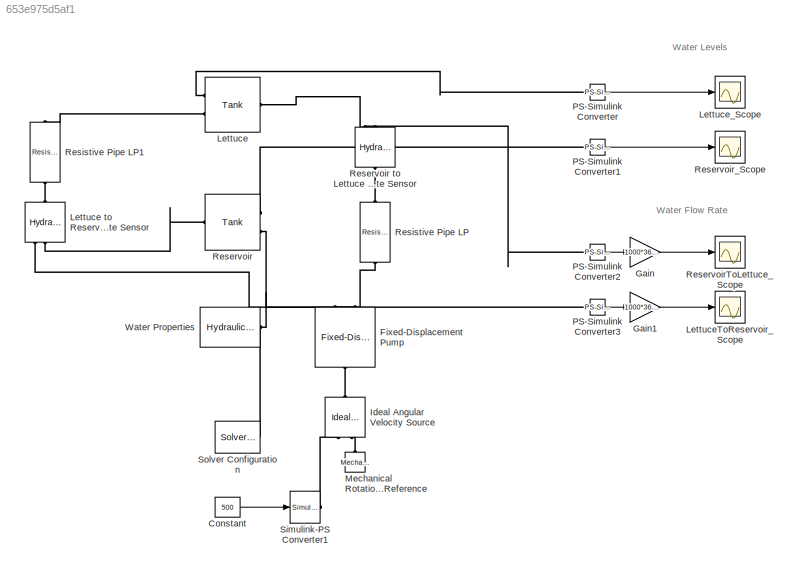
MODEL slx_653e975d5af1
KIND model
CONFIG AbsTol = auto
CONFIG EnableMultiTasking = off
CONFIG FixedStep = auto
CONFIG MaxStep = auto
CONFIG MinStep = auto
CONFIG RelTol = 1e-3
CONFIG SampleTimeConstraint = Unconstrained
CONFIG Solver = VariableStepAuto
CONFIG SolverName = VariableStepAuto
CONFIG StartTime = 0.0
CONFIG StopTime = 60
BLOCK [Reference]  Water Properties  REF=sh_lib/Hydraulic Utilities/Hydraulic Fluid
  Ports = [0, 0, 0, 0, 0, 0, 1]
  SourceBlock = sh_lib/Hydraulic Utilities/Hydraulic Fluid
  SourceProductBaseCode = SH
  SourceProductName = Simscape Fluids
  SourceType = Hydraulic Fluid
BLOCK [Constant] Constant
  Value = 500
BLOCK [Reference] Fixed-Displacement Pump  REF=sh_lib/Pumps and Motors/Fixed-Displacement
Pump
  Ports = [0, 0, 0, 0, 0, 1, 2]
  SourceBlock = sh_lib/Pumps and Motors/Fixed-Displacement\nPump
  SourceProductBaseCode = SH
  SourceProductName = Simscape Fluids
  SourceType = Fixed-Displacement\nPump
BLOCK [Gain] Gain
  Gain = 1000*3600
  OutDataTypeStr = Inherit: Inherit via internal rule
  ParamDataTypeStr = Inherit: Inherit via internal rule
  SaturateOnIntegerOverflow = off
BLOCK [Gain] Gain1
  Gain = 1000*3600
  OutDataTypeStr = Inherit: Inherit via internal rule
  ParamDataTypeStr = Inherit: Inherit via internal rule
  SaturateOnIntegerOverflow = off
BLOCK [Reference] Ideal Angular Velocity Source  REF=fl_lib/Mechanical/Mechanical Sources/Ideal Angular
Velocity Source
  Ports = [0, 0, 0, 0, 0, 1, 2]
  SourceBlock = fl_lib/Mechanical/Mechanical Sources/Ideal Angular\nVelocity Source
  SourceProductBaseCode = SS
  SourceProductName = Simscape
  SourceType = Ideal Angular\nVelocity Source
BLOCK [Reference] Lettuce  REF=sh_lib/Low-Pressure Blocks/Tank
  Ports = [0, 0, 0, 0, 0, 1, 2]
  SourceBlock = sh_lib/Low-Pressure Blocks/Tank
  SourceProductBaseCode = SH
  SourceProductName = Simscape Fluids
  SourceType = Tank
BLOCK [Reference] Lettuce to Reservoir Flow Rate Sensor  REF=fl_lib/Hydraulic/Hydraulic Sensors/Hydraulic Flow Rate
Sensor
  Ports = [0, 0, 0, 0, 0, 1, 3]
  SourceBlock = fl_lib/Hydraulic/Hydraulic Sensors/Hydraulic Flow Rate\nSensor
  SourceProductBaseCode = SS
  SourceProductName = Simscape
  SourceType = Hydraulic Flow Rate\nSensor
BLOCK [Scope] LettuceToReservoir_Scope
  Floating = off
  NumInputPorts = 1
  Ports = [1]
  ScopeSpecificationString = Simulink.scopes.TimeScopeBlockCfg('CurrentConfiguration', extmgr.ConfigurationSet(extmgr.Configuration('Core','General UI',true),extmgr.Configuration('Core','Source UI',true),extmgr.Configuration('Sources','WiredSimulink',true,'DataLoggingVariableName','ScopeData3'),extmgr.Configuration('Visuals','Time Domain',true,'SerializedDisplays',{struct('MinYLimReal','552.1431','MaxYLimReal','552.87611','YL...<+1404ch>
BLOCK [Scope] Lettuce_Scope
  Floating = off
  NumInputPorts = 1
  Ports = [1]
  ScopeSpecificationString = Simulink.scopes.TimeScopeBlockCfg('CurrentConfiguration', extmgr.ConfigurationSet(extmgr.Configuration('Core','General UI',true),extmgr.Configuration('Core','Source UI',true),extmgr.Configuration('Sources','WiredSimulink',true),extmgr.Configuration('Visuals','Time Domain',true,'SerializedDisplays',{struct('MinYLimReal','1.40126','MaxYLimReal','7.38865','YLabelReal','','MinYLimMag','1.40126','MaxYL...<+1369ch>
BLOCK [Reference] Mechanical Rotational Reference  REF=fl_lib/Mechanical/Rotational Elements/Mechanical
Rotational Reference
  Ports = [0, 0, 0, 0, 0, 1]
  SourceBlock = fl_lib/Mechanical/Rotational Elements/Mechanical\nRotational Reference
  SourceProductBaseCode = SS
  SourceProductName = Simscape
  SourceType = Mechanical\nRotational Reference
BLOCK [Reference] PS-Simulink Converter  REF=nesl_utility/PS-Simulink
Converter
  Ports = [0, 1, 0, 0, 0, 1]
  SourceBlock = nesl_utility/PS-Simulink\nConverter
  SourceProductBaseCode = SS
  SourceProductName = Simscape
  SourceType = PS-Simulink\nConverter
BLOCK [Reference] PS-Simulink Converter1  REF=nesl_utility/PS-Simulink
Converter
  Ports = [0, 1, 0, 0, 0, 1]
  SourceBlock = nesl_utility/PS-Simulink\nConverter
  SourceProductBaseCode = SS
  SourceProductName = Simscape
  SourceType = PS-Simulink\nConverter
BLOCK [Reference] PS-Simulink Converter2  REF=nesl_utility/PS-Simulink
Converter
  Ports = [0, 1, 0, 0, 0, 1]
  SourceBlock = nesl_utility/PS-Simulink\nConverter
  SourceProductBaseCode = SS
  SourceProductName = Simscape
  SourceType = PS-Simulink\nConverter
BLOCK [Reference] PS-Simulink Converter3  REF=nesl_utility/PS-Simulink
Converter
  Ports = [0, 1, 0, 0, 0, 1]
  SourceBlock = nesl_utility/PS-Simulink\nConverter
  SourceProductBaseCode = SS
  SourceProductName = Simscape
  SourceType = PS-Simulink\nConverter
BLOCK [Reference] Reservoir  REF=sh_lib/Low-Pressure Blocks/Tank
  Ports = [0, 0, 0, 0, 0, 1, 2]
  SourceBlock = sh_lib/Low-Pressure Blocks/Tank
  SourceProductBaseCode = SH
  SourceProductName = Simscape Fluids
  SourceType = Tank
BLOCK [Reference] Reservoir to Lettuce Flow Rate Sensor  REF=fl_lib/Hydraulic/Hydraulic Sensors/Hydraulic Flow Rate
Sensor
  Ports = [0, 0, 0, 0, 0, 1, 3]
  SourceBlock = fl_lib/Hydraulic/Hydraulic Sensors/Hydraulic Flow Rate\nSensor
  SourceProductBaseCode = SS
  SourceProductName = Simscape
  SourceType = Hydraulic Flow Rate\nSensor
BLOCK [Scope] ReservoirToLettuce_Scope
  Floating = off
  NumInputPorts = 1
  Ports = [1]
  ScopeSpecificationString = Simulink.scopes.TimeScopeBlockCfg('CurrentConfiguration', extmgr.ConfigurationSet(extmgr.Configuration('Core','General UI',true),extmgr.Configuration('Core','Source UI',true),extmgr.Configuration('Sources','WiredSimulink',true,'DataLoggingVariableName','ScopeData2'),extmgr.Configuration('Visuals','Time Domain',true,'SerializedDisplays',{struct('MinYLimReal','839.87566','MaxYLimReal','839.9331','YL...<+1403ch>
BLOCK [Scope] Reservoir_Scope
  Floating = off
  NumInputPorts = 1
  Ports = [1]
  ScopeSpecificationString = Simulink.scopes.TimeScopeBlockCfg('CurrentConfiguration', extmgr.ConfigurationSet(extmgr.Configuration('Core','General UI',true),extmgr.Configuration('Core','Source UI',true),extmgr.Configuration('Sources','WiredSimulink',true,'DataLoggingVariableName','ScopeData1'),extmgr.Configuration('Visuals','Time Domain',true,'SerializedDisplays',{struct('MinYLimReal','4.61135','MaxYLimReal','10.59874','YLab...<+1413ch>
BLOCK [Reference] Resistive Pipe LP  REF=sh_lib/Low-Pressure Blocks/Resistive Pipe LP
  Ports = [0, 0, 0, 0, 0, 1, 1]
  SourceBlock = sh_lib/Low-Pressure Blocks/Resistive Pipe LP
  SourceProductBaseCode = SH
  SourceProductName = Simscape Fluids
  SourceType = Resistive Pipe LP
BLOCK [Reference] Resistive Pipe LP1  REF=sh_lib/Low-Pressure Blocks/Resistive Pipe LP
  Ports = [0, 0, 0, 0, 0, 1, 1]
  SourceBlock = sh_lib/Low-Pressure Blocks/Resistive Pipe LP
  SourceProductBaseCode = SH
  SourceProductName = Simscape Fluids
  SourceType = Resistive Pipe LP
BLOCK [Reference] Simulink-PS Converter1  REF=nesl_utility/Simulink-PS
Converter
  Ports = [1, 0, 0, 0, 0, 0, 1]
  SourceBlock = nesl_utility/Simulink-PS\nConverter
  SourceProductBaseCode = SS
  SourceProductName = Simscape
  SourceType = Simulink-PS\nConverter
BLOCK [Reference] Solver Configuration  REF=nesl_utility/Solver
Configuration
  Ports = [0, 0, 0, 0, 0, 0, 1]
  SourceBlock = nesl_utility/Solver\nConfiguration
  SourceProductBaseCode = SS
  SourceProductName = Simscape
  SourceType = Solver\nConfiguration
ANNOTATION (root): Water Flow Rate
ANNOTATION (root): Water Levels
LINE Constant:1 -> Simulink-PS Converter1:1
LINE Gain1:1 -> LettuceToReservoir_Scope:1
LINE Gain:1 -> ReservoirToLettuce_Scope:1
LINE PS-Simulink Converter1:1 -> Reservoir_Scope:1
LINE PS-Simulink Converter2:1 -> Gain:1
LINE PS-Simulink Converter3:1 -> Gain1:1
LINE PS-Simulink Converter:1 -> Lettuce_Scope:1
PNET net1:  Water Properties:RConn1 -- Fixed-Displacement Pump:RConn2 -- Reservoir:RConn2 -- Solver Configuration:RConn1
PLINE Fixed-Displacement Pump:LConn1 -- Ideal Angular Velocity Source:LConn1
PLINE Fixed-Displacement Pump:RConn1 -- Resistive Pipe LP:LConn1
PLINE Ideal Angular Velocity Source:RConn1 -- Simulink-PS Converter1:RConn1
PLINE Ideal Angular Velocity Source:RConn2 -- Mechanical Rotational Reference:LConn1
PLINE Lettuce to Reservoir Flow Rate Sensor:LConn1 -- Resistive Pipe LP1:RConn1
PLINE Lettuce to Reservoir Flow Rate Sensor:RConn1 -- PS-Simulink Converter3:LConn1
PLINE Lettuce to Reservoir Flow Rate Sensor:RConn2 -- Reservoir:LConn1
PLINE Lettuce:LConn1 -- Reservoir to Lettuce Flow Rate Sensor:RConn2
PLINE Lettuce:RConn1 -- PS-Simulink Converter:LConn1
PLINE Lettuce:RConn2 -- Resistive Pipe LP1:LConn1
PLINE PS-Simulink Converter1:LConn1 -- Reservoir:RConn1
PLINE PS-Simulink Converter2:LConn1 -- Reservoir to Lettuce Flow Rate Sensor:RConn1
PLINE Reservoir to Lettuce Flow Rate Sensor:LConn1 -- Resistive Pipe LP:RConn1
note: PNET lines group multi-terminal physical nets as a canonical sorted terminal list (undirected conserving connections); 2-terminal nets keep the pairwise PLINE form
